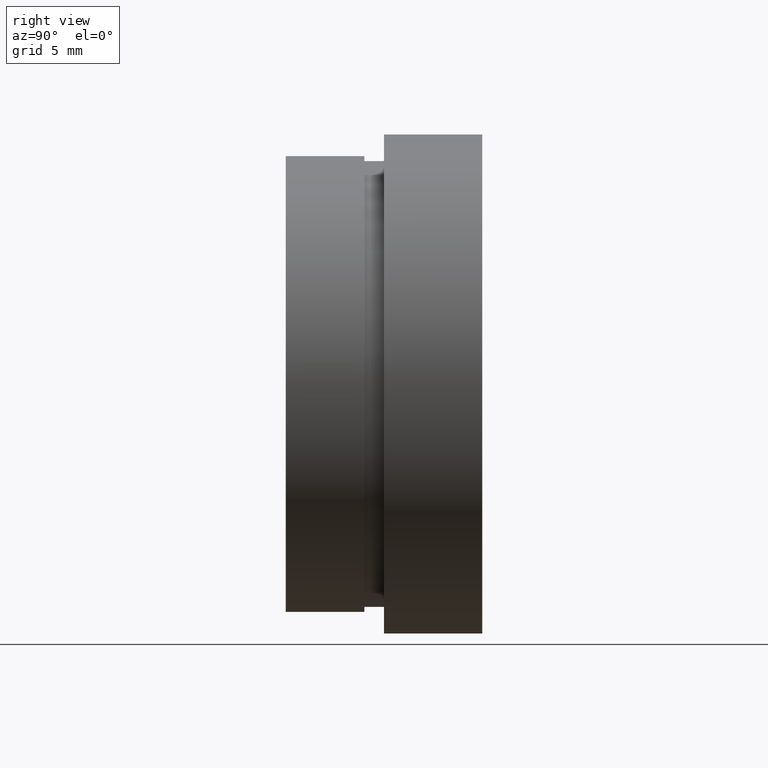
[diagram: clean part render]
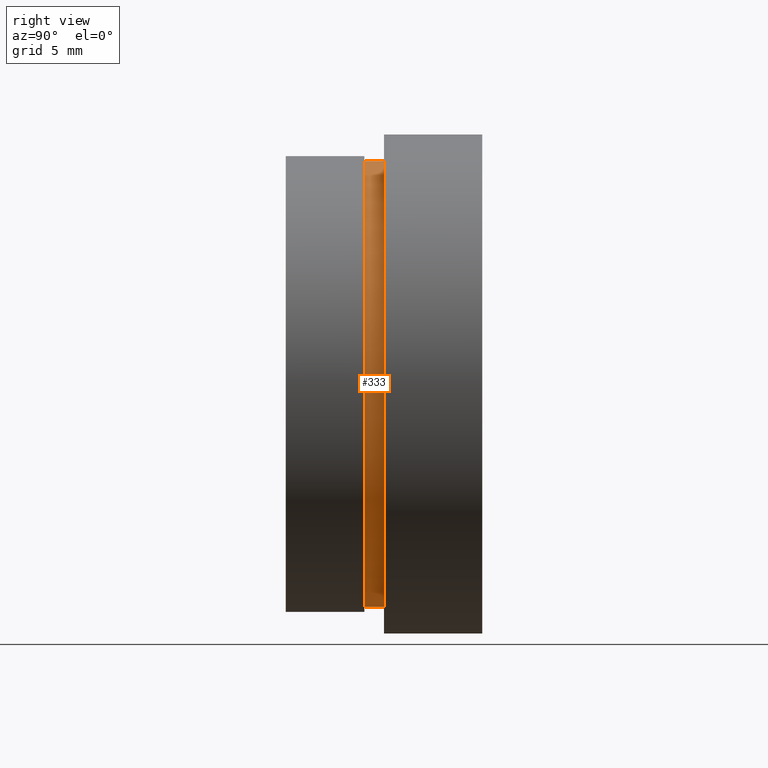
[diagram: same view with one face highlighted and labeled with its STEP entity id]
A machine part, right view. The second image highlights one B-rep face of the part: STEP entity #333.
In plain terms, the highlighted cylindrical surface (partial cylindrical patch) has radius 11.35 mm, axis along (-0, 1, -0).
Its self-contained STEP definition (entity closure, byte-faithful):
#21 = CIRCLE ( 'NONE', #583, 11.35000000000000000 ) ;
#25 = VECTOR ( 'NONE', #402, 1000.000000000000000 ) ;
#52 = LINE ( 'NONE', #526, #25 ) ;
#78 = AXIS2_PLACEMENT_3D ( 'NONE', #505, #341, #444 ) ;
#84 = CARTESIAN_POINT ( 'NONE',  ( 0.0000000000000000000, 13.74468085106383300, 0.0000000000000000000 ) ) ;
#122 = ORIENTED_EDGE ( 'NONE', *, *, #509, .T. ) ;
#156 = CARTESIAN_POINT ( 'NONE',  ( 0.0000000000000000000, 4.000000000000000000, 11.35000000000000000 ) ) ;
#161 = ORIENTED_EDGE ( 'NONE', *, *, #473, .T. ) ;
#163 = CARTESIAN_POINT ( 'NONE',  ( 1.389974117032245900E-015, 13.74468085106383300, -11.35000000000000000 ) ) ;
#184 = CARTESIAN_POINT ( 'NONE',  ( 1.389974117032245900E-015, 4.000000000000000000, -11.35000000000000000 ) ) ;
#185 = VECTOR ( 'NONE', #297, 1000.000000000000000 ) ;
#190 = AXIS2_PLACEMENT_3D ( 'NONE', #84, #199, #411 ) ;
#199 = DIRECTION ( 'NONE',  ( -0.0000000000000000000, 1.000000000000000000, -0.0000000000000000000 ) ) ;
#229 = DIRECTION ( 'NONE',  ( 0.0000000000000000000, 0.0000000000000000000, 1.000000000000000000 ) ) ;
#233 = CARTESIAN_POINT ( 'NONE',  ( 0.0000000000000000000, 5.000000000000000900, 0.0000000000000000000 ) ) ;
#286 = VERTEX_POINT ( 'NONE', #515 ) ;
#297 = DIRECTION ( 'NONE',  ( -0.0000000000000000000, 1.000000000000000000, -0.0000000000000000000 ) ) ;
#301 = LINE ( 'NONE', #163, #185 ) ;
#330 = VERTEX_POINT ( 'NONE', #156 ) ;
#333 = ADVANCED_FACE ( 'NONE', ( #519 ), #446, .T. ) ;
#334 = DIRECTION ( 'NONE',  ( -0.0000000000000000000, 1.000000000000000000, -0.0000000000000000000 ) ) ;
#341 = DIRECTION ( 'NONE',  ( -0.0000000000000000000, 1.000000000000000000, -0.0000000000000000000 ) ) ;
#377 = VERTEX_POINT ( 'NONE', #184 ) ;
#402 = DIRECTION ( 'NONE',  ( -0.0000000000000000000, 1.000000000000000000, -0.0000000000000000000 ) ) ;
#411 = DIRECTION ( 'NONE',  ( 0.0000000000000000000, 0.0000000000000000000, 1.000000000000000000 ) ) ;
#423 = ORIENTED_EDGE ( 'NONE', *, *, #574, .F. ) ;
#436 = CIRCLE ( 'NONE', #78, 11.35000000000000000 ) ;
#444 = DIRECTION ( 'NONE',  ( 0.0000000000000000000, 0.0000000000000000000, 1.000000000000000000 ) ) ;
#446 = CYLINDRICAL_SURFACE ( 'NONE', #190, 11.35000000000000000 ) ;
#473 = EDGE_CURVE ( 'NONE', #377, #286, #301, .T. ) ;
#481 = EDGE_CURVE ( 'NONE', #330, #546, #52, .T. ) ;
#505 = CARTESIAN_POINT ( 'NONE',  ( 0.0000000000000000000, 4.000000000000000000, 0.0000000000000000000 ) ) ;
#509 = EDGE_CURVE ( 'NONE', #330, #377, #436, .T. ) ;
#515 = CARTESIAN_POINT ( 'NONE',  ( 1.389974117032245900E-015, 5.000000000000000900, -11.35000000000000000 ) ) ;
#519 = FACE_OUTER_BOUND ( 'NONE', #589, .T. ) ;
#526 = CARTESIAN_POINT ( 'NONE',  ( 0.0000000000000000000, 13.74468085106383300, 11.35000000000000000 ) ) ;
#546 = VERTEX_POINT ( 'NONE', #590 ) ;
#574 = EDGE_CURVE ( 'NONE', #546, #286, #21, .T. ) ;
#583 = AXIS2_PLACEMENT_3D ( 'NONE', #233, #334, #229 ) ;
#589 = EDGE_LOOP ( 'NONE', ( #122, #161, #423, #617 ) ) ;
#590 = CARTESIAN_POINT ( 'NONE',  ( 0.0000000000000000000, 5.000000000000000900, 11.35000000000000000 ) ) ;
#617 = ORIENTED_EDGE ( 'NONE', *, *, #481, .F. ) ;